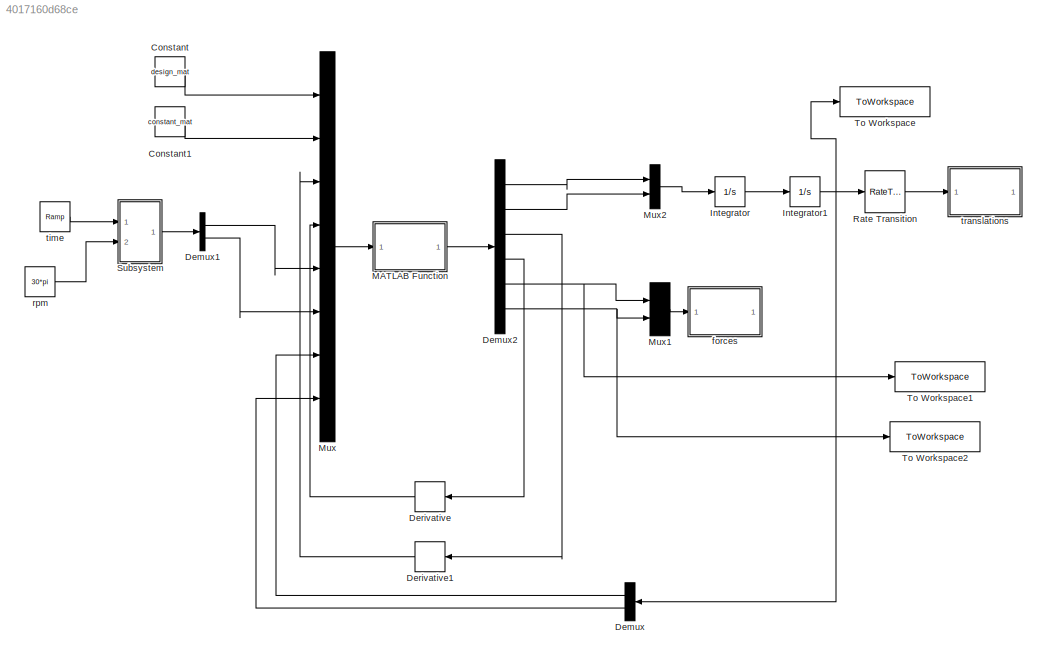
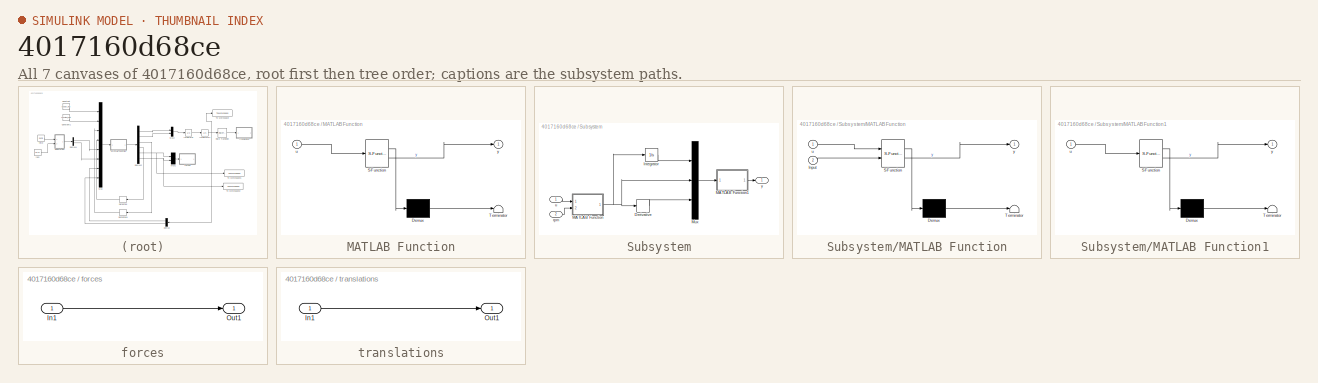
[diagram: thumbnail index - all 7 canvases of the model, root first then tree order]
MODEL slx_4017160d68ce
KIND model
CONFIG AbsTol = 1e-3
CONFIG EnableMultiTasking = on
CONFIG FixedStep = 0.001
CONFIG MaxStep = auto
CONFIG MinStep = auto
CONFIG RelTol = 1e-3
CONFIG SampleTimeConstraint = Unconstrained
CONFIG SolverName = FixedStepAuto
CONFIG StartTime = 0.0
CONFIG StopTime = 20
BLOCK [Constant] Constant
  Value = design_mat
BLOCK [Constant] Constant1
  Value = constant_mat
BLOCK [Demux] Demux
  Outputs = 2
  Ports = [1, 2]
BLOCK [Demux] Demux1
  Outputs = 2
  Ports = [1, 2]
BLOCK [Demux] Demux2
  Outputs = 6
  Ports = [1, 6]
BLOCK [Derivative] Derivative
BLOCK [Derivative] Derivative1
BLOCK [Integrator] Integrator
  Ports = [1, 1]
BLOCK [Integrator] Integrator1
  Ports = [1, 1]
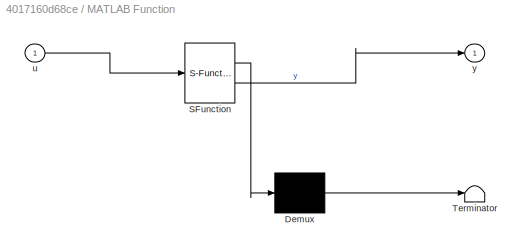
BLOCK [SubSystem] MATLAB Function
  ErrorFcn = Stateflow.Translate.translate
  PermitHierarchicalResolution = ExplicitOnly
  Ports = [1, 1]
  RequestExecContextInheritance = off
  SFBlockType = MATLAB Function
  TreatAsAtomicUnit = on
BLOCK [Demux] MATLAB Function/ Demux 
  Outputs = 1
  Ports = [1, 1]
BLOCK [S-Function] MATLAB Function/ SFunction 
  EnableBusSupport = on
  FunctionName = sf_sfun
  PortCounts = [1 2]
  Ports = [1, 2]
  SFcnIsStateOwnerBlock = off
  SFunctionDeploymentMode = off
  Tag = Stateflow S-Function 3
BLOCK [Terminator] MATLAB Function/ Terminator 
BLOCK [Inport] MATLAB Function/u
BLOCK [Outport] MATLAB Function/y
BLOCK [Mux] Mux
  DisplayOption = bar
  Inputs = 8
  Ports = [8, 1]
BLOCK [Mux] Mux1
  DisplayOption = bar
  Inputs = 2
  Ports = [2, 1]
BLOCK [Mux] Mux2
  DisplayOption = bar
  Inputs = 2
  Ports = [2, 1]
BLOCK [RateTransition] Rate Transition
BLOCK [SubSystem] Subsystem
  Ports = [2, 1]
  RequestExecContextInheritance = off
BLOCK [Derivative] Subsystem/Derivative
BLOCK [Integrator] Subsystem/Integrator
  Ports = [1, 1]
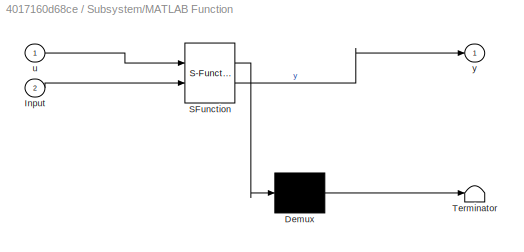
BLOCK [SubSystem] Subsystem/MATLAB Function
  ErrorFcn = Stateflow.Translate.translate
  PermitHierarchicalResolution = ExplicitOnly
  Ports = [2, 1]
  RequestExecContextInheritance = off
  SFBlockType = MATLAB Function
  TreatAsAtomicUnit = on
BLOCK [Demux] Subsystem/MATLAB Function/ Demux 
  Outputs = 1
  Ports = [1, 1]
BLOCK [S-Function] Subsystem/MATLAB Function/ SFunction 
  EnableBusSupport = on
  FunctionName = sf_sfun
  PortCounts = [2 2]
  Ports = [2, 2]
  SFcnIsStateOwnerBlock = off
  SFunctionDeploymentMode = off
  Tag = Stateflow S-Function 2
BLOCK [Terminator] Subsystem/MATLAB Function/ Terminator 
BLOCK [Inport] Subsystem/MATLAB Function/Input
  Port = 2
BLOCK [Inport] Subsystem/MATLAB Function/u
BLOCK [Outport] Subsystem/MATLAB Function/y
BLOCK [SubSystem] Subsystem/MATLAB Function1
  ErrorFcn = Stateflow.Translate.translate
  PermitHierarchicalResolution = ExplicitOnly
  Ports = [1, 1]
  RequestExecContextInheritance = off
  SFBlockType = MATLAB Function
  TreatAsAtomicUnit = on
BLOCK [Demux] Subsystem/MATLAB Function1/ Demux 
  Outputs = 1
  Ports = [1, 1]
BLOCK [S-Function] Subsystem/MATLAB Function1/ SFunction 
  EnableBusSupport = on
  FunctionName = sf_sfun
  PortCounts = [1 2]
  Ports = [1, 2]
  SFcnIsStateOwnerBlock = off
  SFunctionDeploymentMode = off
  Tag = Stateflow S-Function 1
BLOCK [Terminator] Subsystem/MATLAB Function1/ Terminator 
BLOCK [Inport] Subsystem/MATLAB Function1/u
BLOCK [Outport] Subsystem/MATLAB Function1/y
BLOCK [Mux] Subsystem/Mux
  DisplayOption = bar
  Inputs = 3
  Ports = [3, 1]
BLOCK [Inport] Subsystem/rpm
  Port = 2
BLOCK [Inport] Subsystem/u
BLOCK [Outport] Subsystem/y
BLOCK [ToWorkspace] To Workspace
  MaxDataPoints = inf
  Ports = [1]
  SampleTime = -1
  VariableName = xz
BLOCK [ToWorkspace] To Workspace1
  MaxDataPoints = inf
  Ports = [1]
  SampleTime = -1
  VariableName = force_x
BLOCK [ToWorkspace] To Workspace2
  MaxDataPoints = inf
  Ports = [1]
  SampleTime = -1
  VariableName = force_z
BLOCK [SubSystem] forces
  Ports = [1, 1]
  RequestExecContextInheritance = off
BLOCK [Inport] forces/In1
BLOCK [Outport] forces/Out1
BLOCK [Constant] rpm
  Value = 30*pi
BLOCK [Reference] time  REF=simulink/Sources/Ramp
  Ports = [0, 1]
  SourceBlock = simulink/Sources/Ramp
  SourceProductBaseCode = SL
  SourceType = Ramp
BLOCK [SubSystem] translations
  Ports = [1, 1]
  RequestExecContextInheritance = off
BLOCK [Inport] translations/In1
BLOCK [Outport] translations/Out1
LINE Constant1:1 -> Mux:2
LINE Constant:1 -> Mux:1
LINE Demux1:1 -> Mux:5
LINE Demux1:2 -> Mux:6
LINE Demux2:1 -> Mux2:1
LINE Demux2:2 -> Mux2:2
LINE Demux2:3 -> Derivative1:1
LINE Demux2:4 -> Derivative:1
NET Demux2:5 -> Mux1:1, To Workspace1:1
NET Demux2:6 -> Mux1:2, To Workspace2:1
LINE Demux:1 -> Mux:7
LINE Demux:2 -> Mux:8
LINE Derivative1:1 -> Mux:3
LINE Derivative:1 -> Mux:4
NET Integrator1:1 -> Demux:1, Rate Transition:1, To Workspace:1
LINE Integrator:1 -> Integrator1:1
LINE MATLAB Function:1 -> Demux2:1
LINE Mux1:1 -> forces:1
LINE Mux2:1 -> Integrator:1
LINE Mux:1 -> MATLAB Function:1
LINE Rate Transition:1 -> translations:1
LINE Subsystem/Derivative:1 -> Subsystem/Mux:3
LINE Subsystem/Integrator:1 -> Subsystem/Mux:1
LINE Subsystem/MATLAB Function1:1 -> Subsystem/y:1
NET Subsystem/MATLAB Function:1 -> Subsystem/Derivative:1, Subsystem/Integrator:1, Subsystem/Mux:2
LINE Subsystem/Mux:1 -> Subsystem/MATLAB Function1:1
LINE Subsystem/rpm:1 -> Subsystem/MATLAB Function:2
LINE Subsystem/u:1 -> Subsystem/MATLAB Function:1
LINE Subsystem:1 -> Demux1:1
LINE forces/In1:1 -> forces/Out1:1
LINE rpm:1 -> Subsystem:2
LINE time:1 -> Subsystem:1
LINE translations/In1:1 -> translations/Out1:1
note: NET lines group one-source signal fan-out (src -> all destinations, sorted); 1:1 wires keep LINE
CHART Subsystem/MATLAB Function states=1 transitions=1
  STATE_LABEL 'eML_blk_kernel()'
  STATE_LABEL "SCRIPT:\nfunction y = fcn(u, Input)\ny=Input*(1-exp(-u/1.8));  %beta_d'"
CHART MATLAB Function states=1 transitions=1
  STATE_LABEL 'eML_blk_kernel()'
  STATE_LABEL 'SCRIPT:\nfunction y = fcn(u)\n\ny = zeros(6,1);\n\nvd_1 = u(11);\nvd_2 = u(12);\nFx_ext = u(13);\nFz_ext = u(14);\nx = u(15);\nz = u(16);\n\nk = u(1);\nc = u(2);\nxs1 = u(3);\nzs1 = u(4);\nxd1 = u(5);\nzd1 = u(6);\n\nxs2 = xs1; zs2 = zs1;\nxd2 = xd1; zd2 = zd1;\n\nm = u(7);\nmu = u(8);\nr = u(9);\nN = u(10);\n% SPRING 1\nxs1_d = xs1-x; zs1_d = zs1-z;\nls1 = sqrt(xs1^2+zs1^2);\nls1_d = sqrt(xs1_d^2+zs1_d^2);\nFs1 = (ls1-ls1_d)*...<+749ch>'
CHART Subsystem/MATLAB Function1 states=1 transitions=1
  STATE_LABEL 'eML_blk_kernel()'
  STATE_LABEL 'SCRIPT:\nfunction y = fcn(u)\ny=zeros(2,1);\nmu = 2; %Unbalanced Mass\nr = 0.25; %Radius\nbeta_d = u(1);\nbeta_ddot = u(2);\nbeta_dddot = u(3);\nFn = mu*r*beta_ddot^2;\nFt = mu*r*beta_dddot;\ny(1) = Fn*cos(beta_d)-Ft*sin(beta_d);  %Fx_ext\ny(2) = Fn*sin(beta_d)+Ft*cos(beta_d);  %Fz_ext\nend\n'
CHART  states=0 transitions=0
CHART  states=0 transitions=0
CHART  states=0 transitions=0
